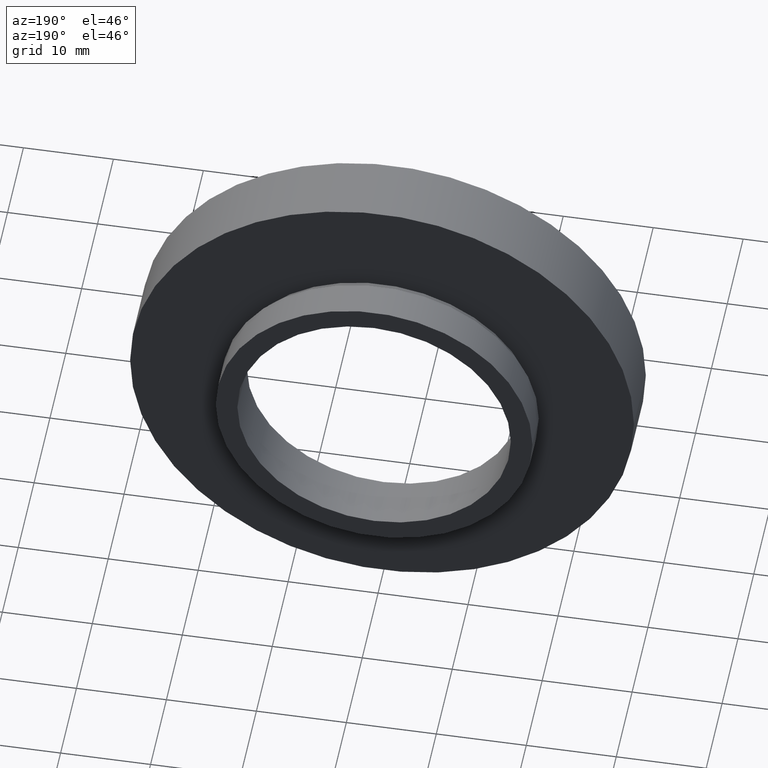
[diagram: clean part render]
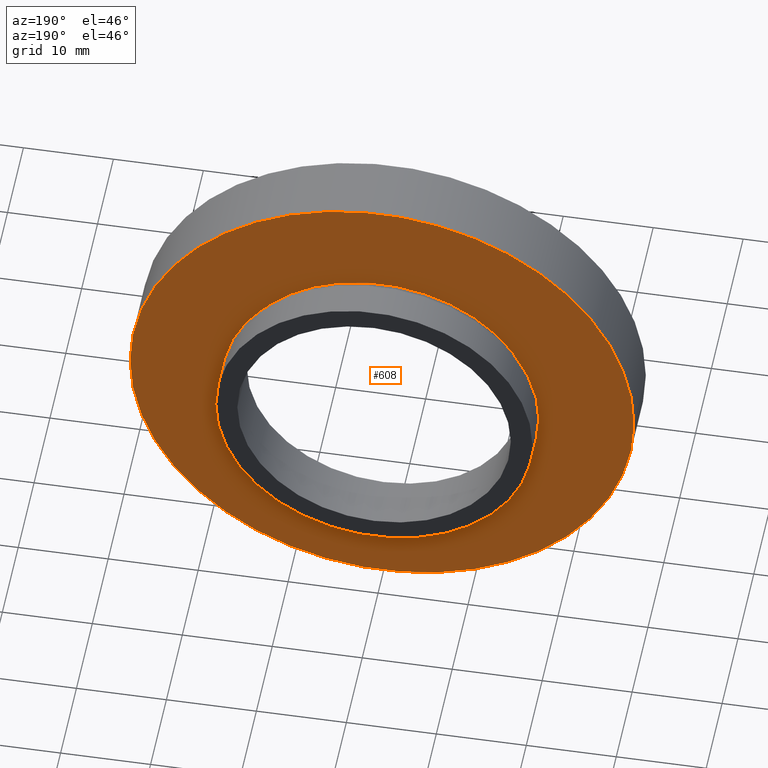
[diagram: same view with one face highlighted and labeled with its STEP entity id]
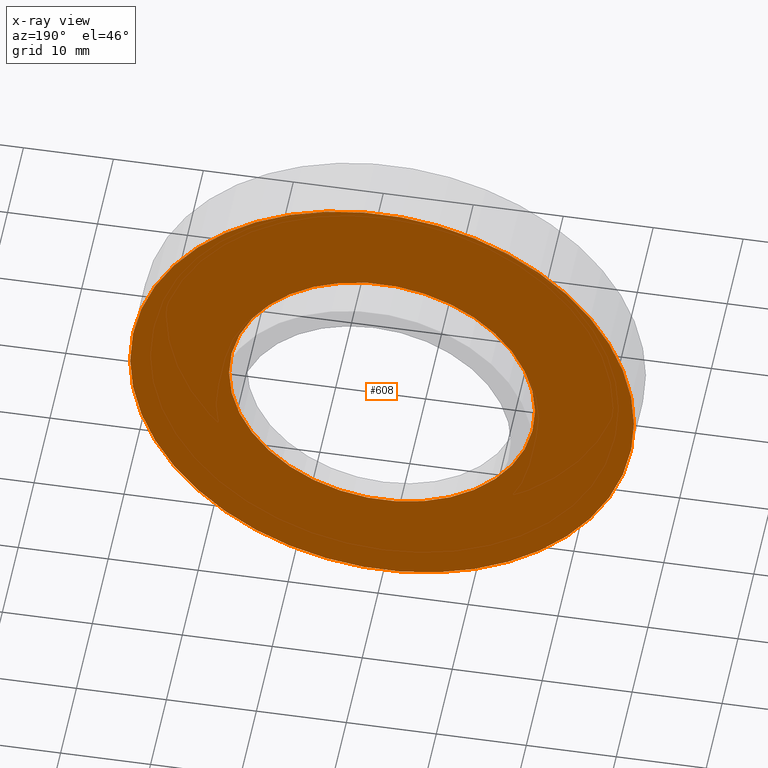
[diagram: x-ray of the same camera — body ghosted, the highlighted face saturated]
A machine part, auxiliary view. The second image highlights one B-rep face of the part: STEP entity #608.
The next image is the same camera in x-ray: the body ghosted, the highlighted face saturated — about 0% of this face is hidden behind the body in this view.
In plain terms, the highlighted planar face has unit normal (0, -1, 0).
Its self-contained STEP definition (entity closure, byte-faithful):
#2 = ORIENTED_EDGE ( 'NONE', *, *, #328, .T. ) ;
#19 = ORIENTED_EDGE ( 'NONE', *, *, #358, .T. ) ;
#30 = CIRCLE ( 'NONE', #487, 17.00000000000000000 ) ;
#37 = PLANE ( 'NONE',  #158 ) ;
#62 = DIRECTION ( 'NONE',  ( -1.224646799147351000E-016, 1.000000000000000000, -0.0000000000000000000 ) ) ;
#103 = CARTESIAN_POINT ( 'NONE',  ( 1.149455719078123100E-015, 7.499999999999996400, 0.0000000000000000000 ) ) ;
#124 = DIRECTION ( 'NONE',  ( 1.000000000000000000, 1.224646799147351000E-016, 0.0000000000000000000 ) ) ;
#133 = CARTESIAN_POINT ( 'NONE',  ( 1.149455719078122700E-015, 7.499999999999998200, 0.0000000000000000000 ) ) ;
#143 = ORIENTED_EDGE ( 'NONE', *, *, #276, .F. ) ;
#148 = DIRECTION ( 'NONE',  ( -1.000000000000000000, -1.239088197126290800E-016, 0.0000000000000000000 ) ) ;
#158 = AXIS2_PLACEMENT_3D ( 'NONE', #273, #421, #124 ) ;
#170 = FACE_BOUND ( 'NONE', #507, .T. ) ;
#191 = DIRECTION ( 'NONE',  ( -1.000000000000000000, -1.020425574104004100E-016, 0.0000000000000000000 ) ) ;
#193 = DIRECTION ( 'NONE',  ( -1.224646799147351000E-016, 1.000000000000000000, -0.0000000000000000000 ) ) ;
#214 = AXIS2_PLACEMENT_3D ( 'NONE', #103, #536, #254 ) ;
#222 = CARTESIAN_POINT ( 'NONE',  ( -17.00000000000000000, 7.499999999999996400, 0.0000000000000000000 ) ) ;
#252 = VERTEX_POINT ( 'NONE', #296 ) ;
#254 = DIRECTION ( 'NONE',  ( -1.000000000000000000, -1.239088197126290800E-016, 0.0000000000000000000 ) ) ;
#264 = EDGE_CURVE ( 'NONE', #549, #252, #30, .T. ) ;
#273 = CARTESIAN_POINT ( 'NONE',  ( 17.00000000000000000, 7.499999999999999100, 0.0000000000000000000 ) ) ;
#276 = EDGE_CURVE ( 'NONE', #252, #549, #312, .T. ) ;
#279 = CARTESIAN_POINT ( 'NONE',  ( -28.00000000000000000, 7.499999999999992900, 0.0000000000000000000 ) ) ;
#296 = CARTESIAN_POINT ( 'NONE',  ( 17.00000000000000000, 7.500000000000000000, 2.081899558550500300E-015 ) ) ;
#300 = CIRCLE ( 'NONE', #589, 28.00000000000000000 ) ;
#305 = CARTESIAN_POINT ( 'NONE',  ( 1.149455719078123100E-015, 7.499999999999996400, 0.0000000000000000000 ) ) ;
#312 = CIRCLE ( 'NONE', #335, 17.00000000000000000 ) ;
#328 = EDGE_CURVE ( 'NONE', #554, #578, #300, .T. ) ;
#335 = AXIS2_PLACEMENT_3D ( 'NONE', #573, #385, #191 ) ;
#354 = EDGE_LOOP ( 'NONE', ( #19, #2 ) ) ;
#358 = EDGE_CURVE ( 'NONE', #578, #554, #410, .T. ) ;
#385 = DIRECTION ( 'NONE',  ( -1.224646799147351000E-016, 1.000000000000000000, -0.0000000000000000000 ) ) ;
#402 = ORIENTED_EDGE ( 'NONE', *, *, #264, .F. ) ;
#410 = CIRCLE ( 'NONE', #214, 28.00000000000000000 ) ;
#421 = DIRECTION ( 'NONE',  ( 1.224646799147351000E-016, -1.000000000000000000, 0.0000000000000000000 ) ) ;
#487 = AXIS2_PLACEMENT_3D ( 'NONE', #133, #193, #529 ) ;
#507 = EDGE_LOOP ( 'NONE', ( #402, #143 ) ) ;
#529 = DIRECTION ( 'NONE',  ( -1.000000000000000000, -1.020425574104004100E-016, 0.0000000000000000000 ) ) ;
#536 = DIRECTION ( 'NONE',  ( -1.224646799147351000E-016, 1.000000000000000000, -0.0000000000000000000 ) ) ;
#549 = VERTEX_POINT ( 'NONE', #222 ) ;
#554 = VERTEX_POINT ( 'NONE', #603 ) ;
#573 = CARTESIAN_POINT ( 'NONE',  ( 1.149455719078122700E-015, 7.499999999999998200, 0.0000000000000000000 ) ) ;
#578 = VERTEX_POINT ( 'NONE', #279 ) ;
#589 = AXIS2_PLACEMENT_3D ( 'NONE', #305, #62, #148 ) ;
#591 = FACE_OUTER_BOUND ( 'NONE', #354, .T. ) ;
#603 = CARTESIAN_POINT ( 'NONE',  ( 28.00000000000000400, 7.500000000000000000, 3.429011037612589700E-015 ) ) ;
#608 = ADVANCED_FACE ( 'NONE', ( #170, #591 ), #37, .F. ) ;